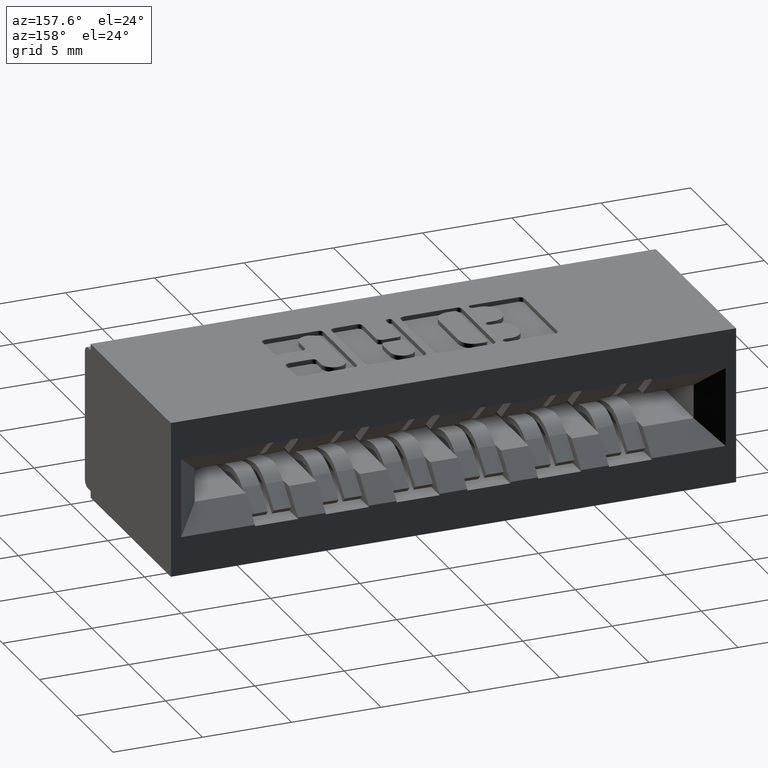
[diagram: clean part render]
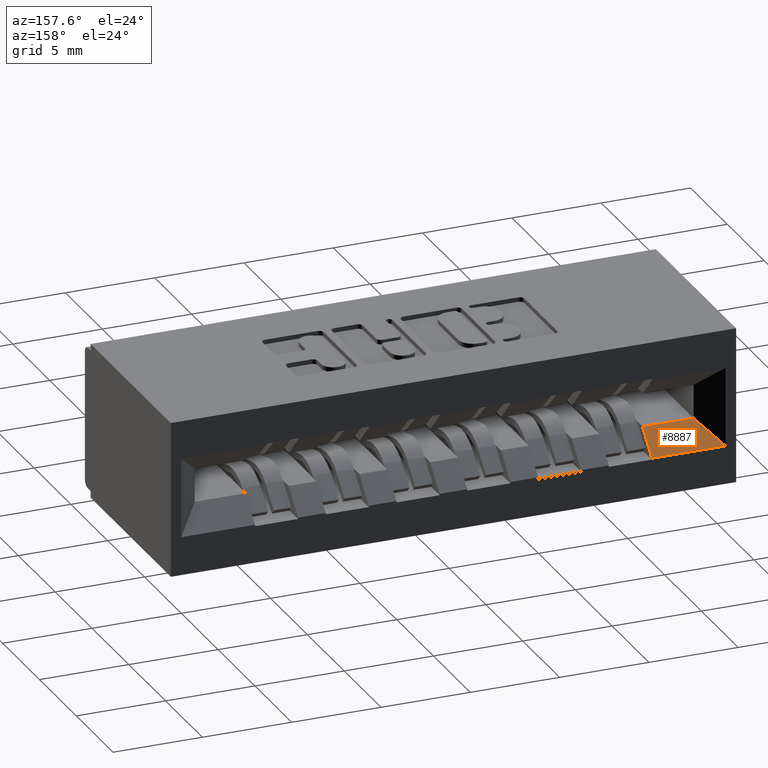
[diagram: same view with one face highlighted and labeled with its STEP entity id]
A machine part, auxiliary view. The second image highlights one B-rep face of the part: STEP entity #8887.
In plain terms, the highlighted planar face has unit normal (0, -0.7071, -0.7071).
Its self-contained STEP definition (entity closure, byte-faithful):
#23 = ORIENTED_EDGE ( 'NONE', *, *, #3708, .T. ) ;
#200 = AXIS2_PLACEMENT_3D ( 'NONE', #298, #6541, #4235 ) ;
#298 = CARTESIAN_POINT ( 'NONE',  ( 0.3710000000000011100, 0.4100000000000002500, -0.2085000000000003800 ) ) ;
#614 = LINE ( 'NONE', #4083, #732 ) ;
#732 = VECTOR ( 'NONE', #3330, 39.37007874015748100 ) ;
#1277 = ORIENTED_EDGE ( 'NONE', *, *, #4325, .F. ) ;
#1429 = ORIENTED_EDGE ( 'NONE', *, *, #7507, .F. ) ;
#2390 = CARTESIAN_POINT ( 'NONE',  ( 0.3710000000000011100, 0.4100000000000002500, -0.2085000000000003800 ) ) ;
#2498 = VECTOR ( 'NONE', #9398, 39.37007874015748900 ) ;
#2537 = PLANE ( 'NONE',  #200 ) ;
#2697 = LINE ( 'NONE', #2390, #7076 ) ;
#2703 = EDGE_CURVE ( 'NONE', #3898, #3838, #614, .T. ) ;
#3330 = DIRECTION ( 'NONE',  ( 1.000000000000000000, 0.0000000000000000000, 0.0000000000000000000 ) ) ;
#3708 = EDGE_CURVE ( 'NONE', #3898, #7351, #2697, .T. ) ;
#3838 = VERTEX_POINT ( 'NONE', #3953 ) ;
#3844 = CARTESIAN_POINT ( 'NONE',  ( 0.4835000000000011000, 0.4600000000000000200, -0.2585000000000004000 ) ) ;
#3898 = VERTEX_POINT ( 'NONE', #4703 ) ;
#3953 = CARTESIAN_POINT ( 'NONE',  ( 0.4835000000000011000, 0.4600000000000000200, -0.2585000000000004000 ) ) ;
#4083 = CARTESIAN_POINT ( 'NONE',  ( 0.0000000000000000000, 0.4600000000000000200, -0.2585000000000004000 ) ) ;
#4235 = DIRECTION ( 'NONE',  ( 0.0000000000000000000, 0.7071067811865454600, -0.7071067811865493500 ) ) ;
#4325 = EDGE_CURVE ( 'NONE', #8096, #7351, #7414, .T. ) ;
#4703 = CARTESIAN_POINT ( 'NONE',  ( 0.3210000000000011200, 0.4600000000000000200, -0.2585000000000004000 ) ) ;
#5477 = CARTESIAN_POINT ( 'NONE',  ( 0.4835000000000011000, 0.4100000000000002500, -0.2085000000000003800 ) ) ;
#6488 = EDGE_LOOP ( 'NONE', ( #1277, #1429, #7585, #23 ) ) ;
#6541 = DIRECTION ( 'NONE',  ( 0.0000000000000000000, -0.7071067811865494600, -0.7071067811865455700 ) ) ;
#7053 = VECTOR ( 'NONE', #8807, 39.37007874015748100 ) ;
#7076 = VECTOR ( 'NONE', #8515, 39.37007874015748100 ) ;
#7113 = FACE_OUTER_BOUND ( 'NONE', #6488, .T. ) ;
#7351 = VERTEX_POINT ( 'NONE', #9891 ) ;
#7414 = LINE ( 'NONE', #7744, #7053 ) ;
#7507 = EDGE_CURVE ( 'NONE', #3838, #8096, #8088, .T. ) ;
#7585 = ORIENTED_EDGE ( 'NONE', *, *, #2703, .F. ) ;
#7744 = CARTESIAN_POINT ( 'NONE',  ( 0.3710000000000011100, 0.4100000000000002500, -0.2085000000000003800 ) ) ;
#8088 = LINE ( 'NONE', #3844, #2498 ) ;
#8096 = VERTEX_POINT ( 'NONE', #5477 ) ;
#8515 = DIRECTION ( 'NONE',  ( 0.5773502691896268400, -0.5773502691896236200, 0.5773502691896268400 ) ) ;
#8807 = DIRECTION ( 'NONE',  ( -1.000000000000000000, 0.0000000000000000000, 0.0000000000000000000 ) ) ;
#8887 = ADVANCED_FACE ( 'NONE', ( #7113 ), #2537, .F. ) ;
#9398 = DIRECTION ( 'NONE',  ( 0.0000000000000000000, -0.7071067811865454600, 0.7071067811865493500 ) ) ;
#9891 = CARTESIAN_POINT ( 'NONE',  ( 0.3710000000000011100, 0.4100000000000002500, -0.2085000000000003800 ) ) ;